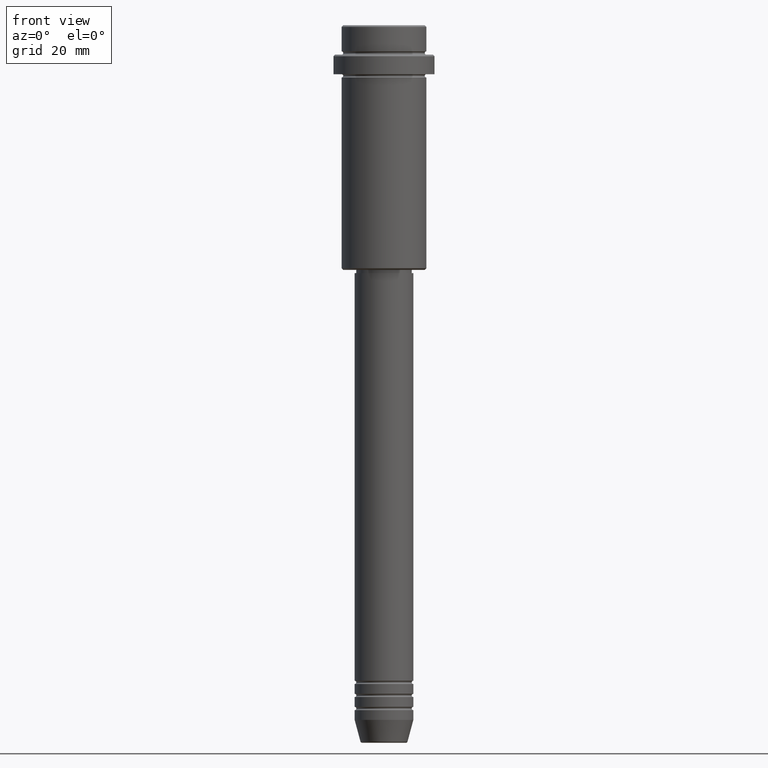
[diagram: clean part render]
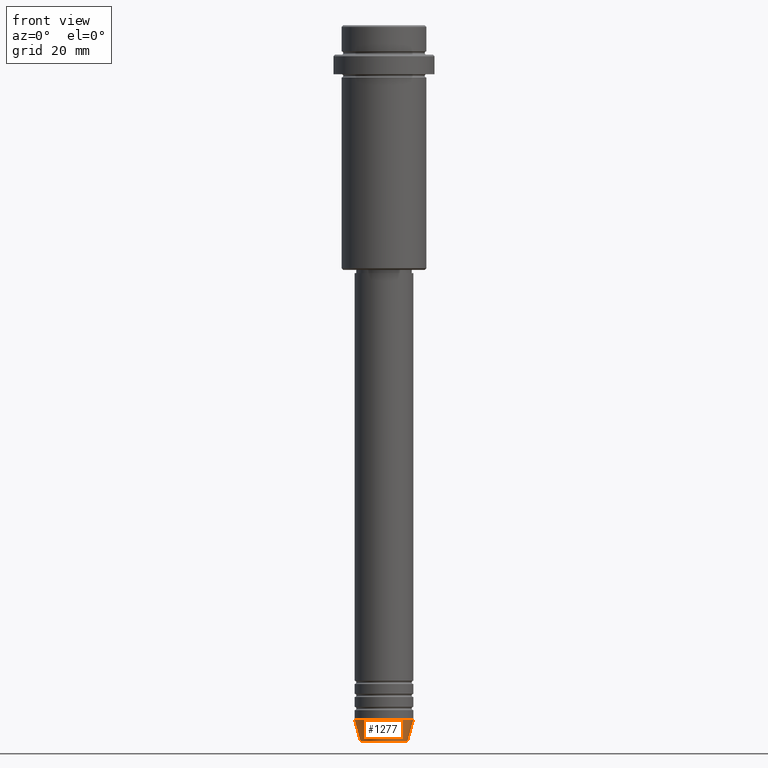
[diagram: same view with one face highlighted and labeled with its STEP entity id]
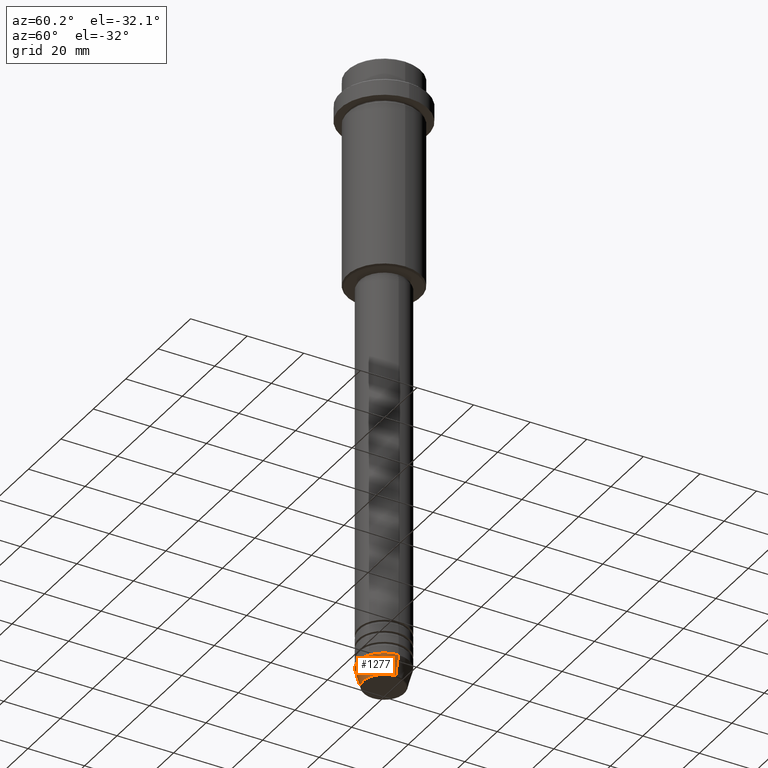
[diagram: same view with one face highlighted and labeled with its STEP entity id]
A machine part, front view. The second image highlights one B-rep face of the part: STEP entity #1277.
A second angle (auxiliary view) of the same face is appended — the face is thin or edge-on in the first view.
In plain terms, the highlighted conical surface has half-angle 15 deg.
Its self-contained STEP definition (entity closure, byte-faithful):
#22 = CIRCLE ( 'NONE', #561, 7.223655072137188604 ) ;
#53 = CARTESIAN_POINT ( 'NONE',  ( 0.000000000000000000, 0.000000000000000000, -212.9999999999999716 ) ) ;
#142 = VECTOR ( 'NONE', #738, 1000.000000000000000 ) ;
#150 = VERTEX_POINT ( 'NONE', #1187 ) ;
#155 = DIRECTION ( 'NONE',  ( 1.000000000000000000, 0.000000000000000000, 0.000000000000000000 ) ) ;
#221 = CARTESIAN_POINT ( 'NONE',  ( 0.000000000000000000, 0.000000000000000000, -219.6294095225512422 ) ) ;
#250 = AXIS2_PLACEMENT_3D ( 'NONE', #53, #275, #155 ) ;
#275 = DIRECTION ( 'NONE',  ( -0.000000000000000000, -0.000000000000000000, 1.000000000000000000 ) ) ;
#279 = VERTEX_POINT ( 'NONE', #446 ) ;
#290 = LINE ( 'NONE', #977, #142 ) ;
#443 = EDGE_CURVE ( 'NONE', #1300, #150, #827, .T. ) ;
#446 = CARTESIAN_POINT ( 'NONE',  ( -9.000000000000000000, 1.102182119232617714E-15, -212.9999999999999716 ) ) ;
#561 = AXIS2_PLACEMENT_3D ( 'NONE', #221, #912, #771 ) ;
#595 = DIRECTION ( 'NONE',  ( 0.2588190451025213501, 0.000000000000000000, 0.9659258262890680902 ) ) ;
#598 = EDGE_CURVE ( 'NONE', #851, #279, #290, .T. ) ;
#621 = CARTESIAN_POINT ( 'NONE',  ( 0.000000000000000000, 0.000000000000000000, -212.9999999999999716 ) ) ;
#690 = CIRCLE ( 'NONE', #1003, 9.000000000000000000 ) ;
#692 = EDGE_CURVE ( 'NONE', #279, #150, #690, .T. ) ;
#717 = VECTOR ( 'NONE', #595, 1000.000000000000000 ) ;
#726 = DIRECTION ( 'NONE',  ( 1.000000000000000000, 0.000000000000000000, 0.000000000000000000 ) ) ;
#738 = DIRECTION ( 'NONE',  ( -0.2588190451025213501, 3.169619151431772337E-17, 0.9659258262890680902 ) ) ;
#745 = DIRECTION ( 'NONE',  ( -0.000000000000000000, -0.000000000000000000, 1.000000000000000000 ) ) ;
#771 = DIRECTION ( 'NONE',  ( 1.000000000000000000, 0.000000000000000000, 0.000000000000000000 ) ) ;
#827 = LINE ( 'NONE', #1165, #717 ) ;
#851 = VERTEX_POINT ( 'NONE', #956 ) ;
#912 = DIRECTION ( 'NONE',  ( -0.000000000000000000, -0.000000000000000000, 1.000000000000000000 ) ) ;
#931 = CARTESIAN_POINT ( 'NONE',  ( 7.223655072137188604, 0.000000000000000000, -219.6294095225512422 ) ) ;
#937 = FACE_OUTER_BOUND ( 'NONE', #1400, .T. ) ;
#956 = CARTESIAN_POINT ( 'NONE',  ( -7.223655072137189492, 9.934123627281765110E-16, -219.6294095225512422 ) ) ;
#977 = CARTESIAN_POINT ( 'NONE',  ( -9.000000000000000000, 1.102182119232617714E-15, -212.9999999999999716 ) ) ;
#1003 = AXIS2_PLACEMENT_3D ( 'NONE', #621, #745, #726 ) ;
#1122 = CONICAL_SURFACE ( 'NONE', #250, 9.000000000000000000, 0.2617993877991500740 ) ;
#1165 = CARTESIAN_POINT ( 'NONE',  ( 9.000000000000000000, 0.000000000000000000, -212.9999999999999716 ) ) ;
#1187 = CARTESIAN_POINT ( 'NONE',  ( 9.000000000000000000, 0.000000000000000000, -212.9999999999999716 ) ) ;
#1189 = EDGE_CURVE ( 'NONE', #851, #1300, #22, .T. ) ;
#1214 = ORIENTED_EDGE ( 'NONE', *, *, #1189, .T. ) ;
#1216 = ORIENTED_EDGE ( 'NONE', *, *, #443, .T. ) ;
#1264 = ORIENTED_EDGE ( 'NONE', *, *, #598, .F. ) ;
#1277 = ADVANCED_FACE ( 'NONE', ( #937 ), #1122, .T. ) ;
#1300 = VERTEX_POINT ( 'NONE', #931 ) ;
#1400 = EDGE_LOOP ( 'NONE', ( #1264, #1214, #1216, #1402 ) ) ;
#1402 = ORIENTED_EDGE ( 'NONE', *, *, #692, .F. ) ;